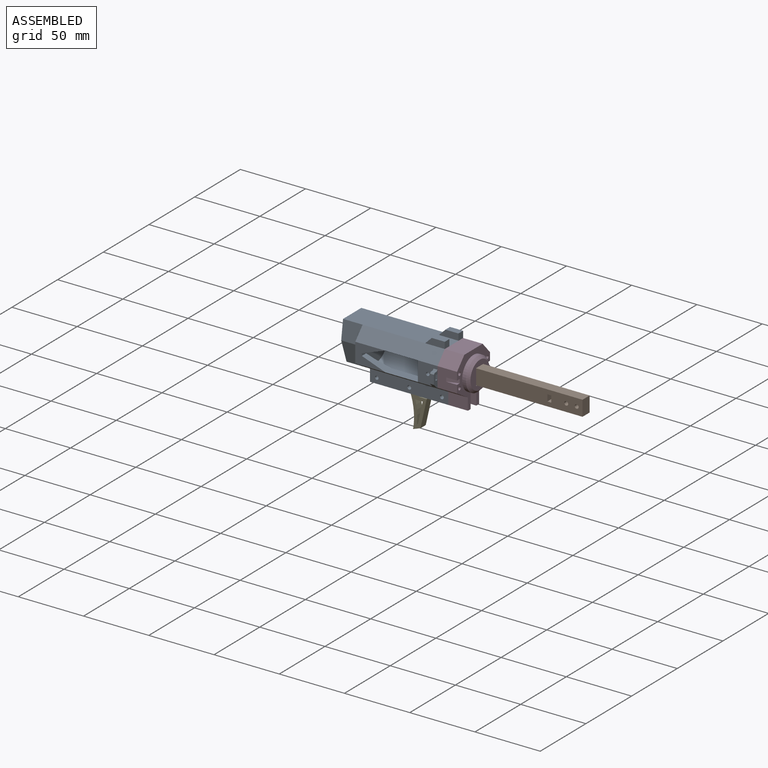
[diagram: assembled view]
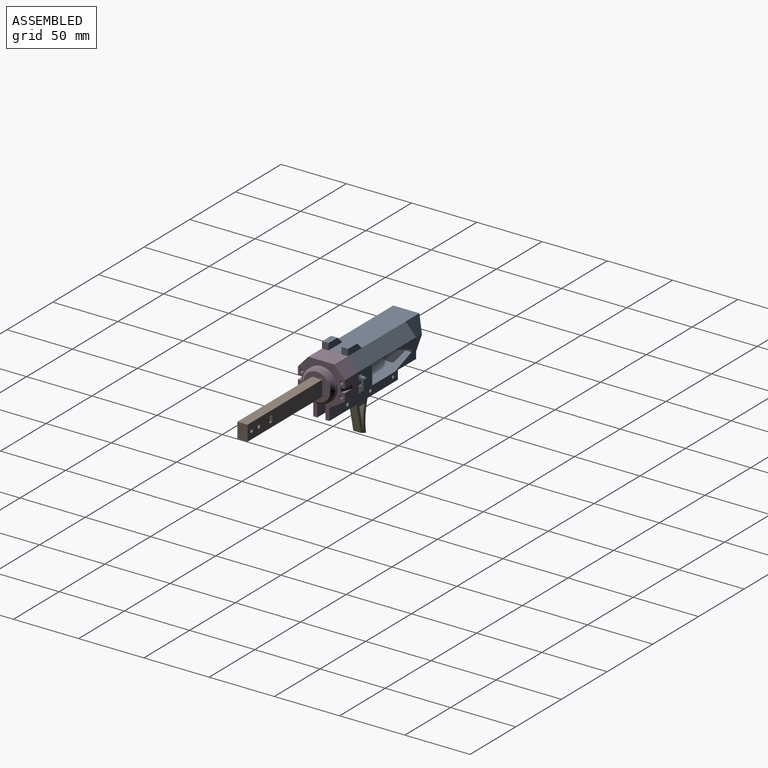
[diagram: assembled view, second angle]
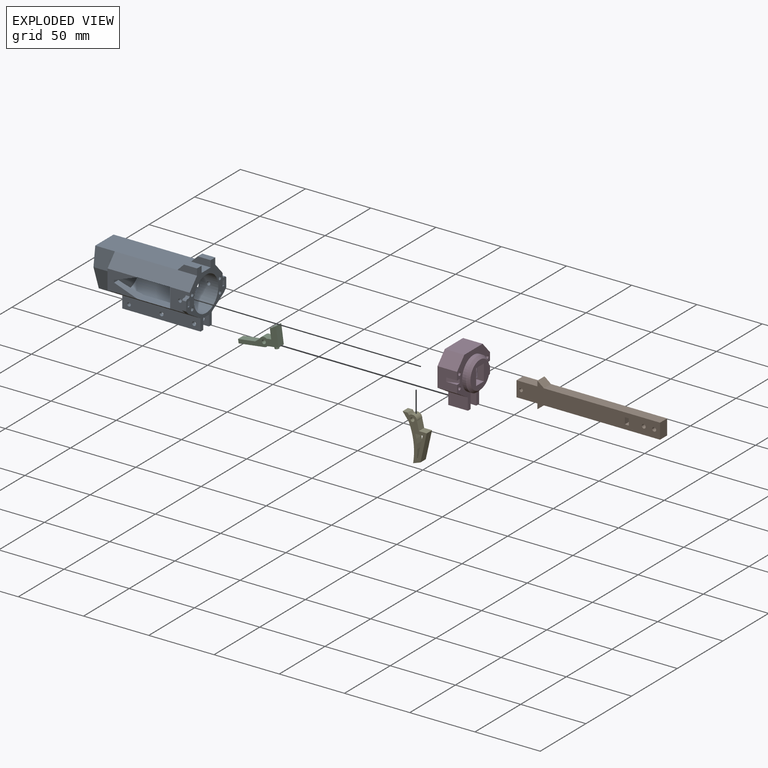
[diagram: exploded view]
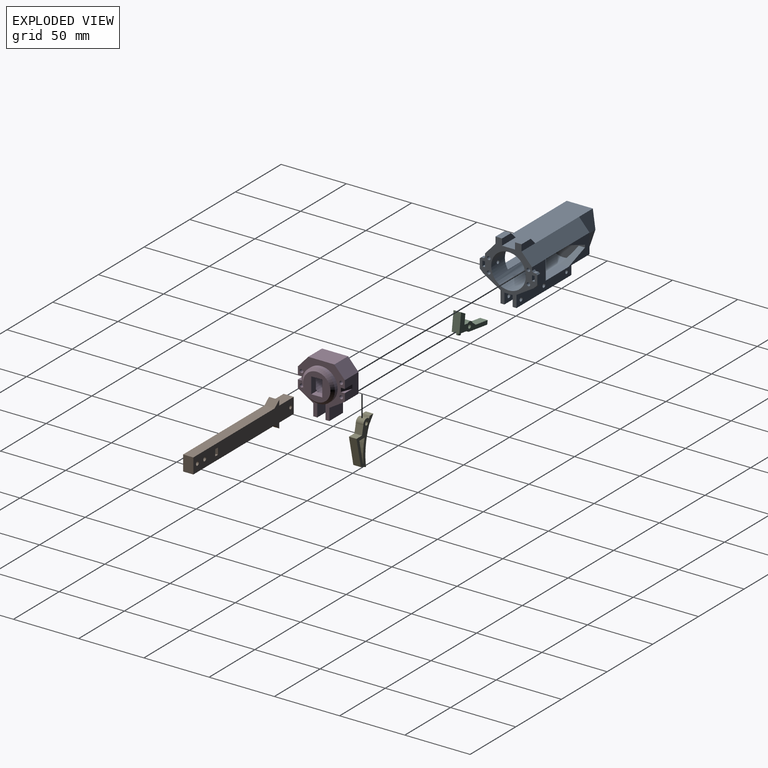
[diagram: exploded view, second angle]
ASSEMBLY  parts=5 mates=4
PART A: 98 faces, bbox 78x44x45.2 mm
  f0: plane 26.6x26.6mm, normal (1,0,0), area 470.8mm2, adj f21,f37,f38,f39,f40,f41,f42,f43
  f1: plane 20x7.28mm, normal (0.34,0,0.94), area 106.3mm2, adj f21,f24,f27,f96,f97
  f2: plane 20x7.28mm, normal (0.34,0,-0.94), area 106.3mm2, adj f21,f25,f27,f96,f97
  f3: plane 15x15mm, normal (0,1,0), area 193.8mm2, adj f7,f12,f13,f22,f67,f76,f78,f79
  f4: plane 31.07x11.85mm, normal (-1,0,0), area 171.8mm2, adj f12,f13,f27,f32,f35
  f5: plane 12.3x9.15mm, normal (-1,0,0), area 60.7mm2, adj f8,f9,f10,f11,f18,f19,f20,f28
  f6: plane 15x7.02mm, normal (-1,0,0), area 81.6mm2, adj f16,f21,f23,f26
  f7: plane 15x7.02mm, normal (-1,0,0), area 81.6mm2, adj f3,f21,f24,f25
  f8: plane 60x6.3mm, normal (0,0,-1), area 378mm2, adj f5,f9,f20,f22
  f9: plane 60x8.23mm, normal (0,-1,0), area 474.2mm2, adj f5,f8,f10,f22,f63,f64,f65
  f10: plane 60x3mm, normal (0,0,-1), area 180mm2, adj f5,f9,f11,f22
  f11: plane 60x9.15mm, normal (0,1,0), area 529.2mm2, adj f5,f10,f12,f22,f63,f64,f65
  f12: plane 63x13.14mm, normal (0,0.52,-0.85), area 880.4mm2, adj f3,f4,f11,f22,f24,f27,f28,f79
  f13: plane 63x8.8mm, normal (0,0.74,0.67), area 749.2mm2, adj f3,f4,f14,f22,f25,f27,f89
  f14: plane 78x20mm, normal (0,0,1), area 1410mm2, adj f13,f15,f22,f34,f35,f36,f86,f91
  f15: plane 63x8.8mm, normal (0,-0.74,0.67), area 749.2mm2, adj f14,f16,f22,f26,f29,f31,f88
  f16: plane 15x15mm, normal (0,-1,0), area 193.8mm2, adj f6,f15,f17,f22,f66,f70,f72,f73
  f17: plane 63x13.14mm, normal (0,-0.52,-0.85), area 880.4mm2, adj f16,f18,f22,f23,f28,f29,f31,f73
  f18: plane 60x9.15mm, normal (0,-1,0), area 529.2mm2, adj f5,f17,f19,f22,f60,f61,f62
  f19: plane 60x3mm, normal (0,0,-1), area 180mm2, adj f5,f18,f20,f22
  f20: plane 60x8.23mm, normal (0,1,0), area 474.2mm2, adj f5,f8,f19,f22,f60,f61,f62
  f21: cylinder r=13.3mm len=60mm, axis (1,0,0), area 3887.8mm2, adj f0,f1,f2,f6,f7,f22,f23,f24
  f22: plane 45.22x44mm, normal (1,0,0), area 557.4mm2, adj f3,f8,f9,f10,f11,f12,f13,f14
  f23: plane 25x7.02mm, normal (0,0,1), area 175.4mm2, adj f6,f17,f21,f51
  f24: plane 25x7.02mm, normal (0,0,1), area 175.4mm2, adj f1,f7,f12,f21
  f25: plane 25x7.02mm, normal (0,0,-1), area 175.4mm2, adj f2,f7,f13,f21
  f26: plane 25x7.02mm, normal (0,0,-1), area 175.4mm2, adj f6,f15,f21,f50
  f27: plane 23x15mm, normal (0,1,0), area 192.9mm2, adj f1,f2,f4,f12,f13,f97
  f28: plane 18x12.3mm, normal (0,0,-1), area 221.4mm2, adj f5,f12,f17,f32,f33,f36
  f29: plane 23x15mm, normal (0,-1,0), area 192.9mm2, adj f15,f17,f31,f50,f51,f95
  f30: cylinder r=9.1mm len=18.2mm, axis (1,0,0), area 857.7mm2, adj f36,f49
  f31: plane 31.07x11.85mm, normal (-1,0,0), area 171.8mm2, adj f15,f17,f29,f33,f34
  f32: plane 16.92x15mm, normal (0,0.95,-0.33), area 268.6mm2, adj f4,f28,f35,f36
  f33: plane 16.92x15mm, normal (0,-0.95,-0.33), area 268.6mm2, adj f28,f31,f34,f36
  f34: plane 15x14.15mm, normal (0,-0.99,0.14), area 214.4mm2, adj f14,f31,f33,f36
  f35: plane 15x14.15mm, normal (0,0.99,0.14), area 214.4mm2, adj f4,f14,f32,f36
  f36: plane 31.07x24mm, normal (-1,0,0), area 358.3mm2, adj f14,f28,f30,f32,f33,f34,f35
  f37: plane 5.42x3mm, normal (0,0,-1), area 16.3mm2, adj f0,f38,f45,f49
  f38: cylinder r=6.5mm len=5.42mm, axis (-1,0,0), area 24.6mm2, adj f0,f37,f45,f49
  f39: plane 5.42x3mm, normal (0,-1,0), area 16.3mm2, adj f0,f40,f46,f49
  f40: cylinder r=6.5mm len=5.42mm, axis (-1,0,0), area 24.6mm2, adj f0,f39,f46,f49
  f41: plane 5.42x3mm, normal (0,0,1), area 16.3mm2, adj f0,f42,f47,f49
  f42: cylinder r=6.5mm len=5.42mm, axis (-1,0,0), area 24.6mm2, adj f0,f41,f47,f49
  f43: cylinder r=6.5mm len=5.42mm, axis (-1,0,0), area 24.6mm2, adj f0,f44,f48,f49
  f44: plane 5.42x3mm, normal (0,0,-1), area 16.3mm2, adj f0,f43,f48,f49
  f45: plane 5.42x3mm, normal (0,-1,0), area 16.3mm2, adj f0,f37,f38,f49
  f46: plane 5.42x3mm, normal (0,0,1), area 16.3mm2, adj f0,f39,f40,f49
  f47: plane 5.42x3mm, normal (0,1,0), area 16.3mm2, adj f0,f41,f42,f49
  f48: plane 5.42x3mm, normal (0,1,0), area 16.3mm2, adj f0,f43,f44,f49
  f49: plane 18.2x18.2mm, normal (-1,0,0), area 175.2mm2, adj f30,f37,f38,f39,f40,f41,f42,f43
  f50: plane 20x7.28mm, normal (0.34,0,-0.94), area 106.3mm2, adj f21,f26,f29,f94,f95
  f51: plane 20x7.28mm, normal (0.34,0,0.94), area 106.3mm2, adj f21,f23,f29,f94,f95
  f52: cylinder r=1.35mm len=10mm, axis (1,0,0), area 84.8mm2, adj f22,f53
  f53: plane 2.7x2.7mm, normal (1,0,0), area 5.7mm2, adj f52
  f54: cylinder r=1.35mm len=10mm, axis (1,0,0), area 84.8mm2, adj f22,f55
  f55: plane 2.7x2.7mm, normal (1,0,0), area 5.7mm2, adj f54
  f56: cylinder r=1.35mm len=10mm, axis (1,0,0), area 84.8mm2, adj f22,f57
  f57: plane 2.7x2.7mm, normal (1,0,0), area 5.7mm2, adj f56
  f58: cylinder r=1.35mm len=10mm, axis (1,0,0), area 84.8mm2, adj f22,f59
  f59: plane 2.7x2.7mm, normal (1,0,0), area 5.7mm2, adj f58
  f60: cylinder r=1.5mm len=3mm, axis (0,-1,0), area 28.3mm2, adj f18,f20
  f61: cylinder r=1.5mm len=3mm, axis (0,-1,0), area 28.3mm2, adj f18,f20
  f62: cylinder r=1.35mm len=3mm, axis (0,-1,0), area 25.4mm2, adj f18,f20
  f63: cylinder r=1.5mm len=3mm, axis (0,-1,0), area 28.3mm2, adj f9,f11
  f64: cylinder r=1.5mm len=3mm, axis (0,-1,0), area 28.3mm2, adj f9,f11
  f65: cylinder r=1.35mm len=3mm, axis (0,-1,0), area 25.4mm2, adj f9,f11
  f66: cylinder r=1.35mm len=4.77mm, axis (0,-1,0), area 40.2mm2, adj f16,f21
  f67: cylinder r=1.35mm len=4.77mm, axis (0,-1,0), area 40.2mm2, adj f3,f21
  f68: plane 3x2mm, normal (0,0,1), area 6mm2, adj f22,f73,f84,f85
  f69: plane 7x3mm, normal (0,-1,0), area 21mm2, adj f22,f73,f80,f84
  f70: plane 3x2mm, normal (0,0,1), area 6mm2, adj f16,f22,f71,f73
  f71: plane 4x3mm, normal (0,1,0), area 12mm2, adj f22,f70,f72,f73
  f72: plane 3x2mm, normal (0,0,-1), area 6mm2, adj f16,f22,f71,f73
  f73: plane 12.5x4mm, normal (-1,0,0), area 31.7mm2, adj f16,f17,f68,f69,f70,f71,f72,f80
  f74: plane 7x3mm, normal (0,1,0), area 21mm2, adj f22,f79,f81,f83
  f75: plane 3x2mm, normal (0,0,1), area 6mm2, adj f22,f79,f82,f83
  f76: plane 3x2mm, normal (0,0,-1), area 6mm2, adj f3,f22,f77,f79
  f77: plane 4x3mm, normal (0,-1,0), area 12mm2, adj f22,f76,f78,f79
  f78: plane 3x2mm, normal (0,0,1), area 6mm2, adj f3,f22,f77,f79
  f79: plane 12.5x4mm, normal (-1,0,0), area 31.7mm2, adj f3,f12,f74,f75,f76,f77,f78,f81
  f80: plane 3x2.71mm, normal (0,-0.71,-0.71), area 11.5mm2, adj f17,f22,f69,f73
  f81: plane 3x2.71mm, normal (0,0.71,-0.71), area 11.5mm2, adj f12,f22,f74,f79
  f82: plane 3x1mm, normal (0,0.71,0.71), area 4.2mm2, adj f3,f22,f75,f79
  f83: plane 3x1mm, normal (0,0.71,0.71), area 4.2mm2, adj f22,f74,f75,f79
  f84: plane 3x1mm, normal (0,-0.71,0.71), area 4.2mm2, adj f22,f68,f69,f73
  f85: plane 3x1mm, normal (0,-0.71,0.71), area 4.2mm2, adj f16,f22,f68,f73
  f86: plane 15x5mm, normal (0,1,0), area 62.5mm2, adj f14,f22,f87,f93
  f87: plane 10x5mm, normal (0,0,1), area 50mm2, adj f22,f86,f88,f93
  f88: plane 15x5mm, normal (0,-1,0), area 62.5mm2, adj f15,f22,f87,f93
  f89: plane 15x5mm, normal (0,1,0), area 62.5mm2, adj f13,f22,f90,f92
  f90: plane 10x5mm, normal (0,0,1), area 50mm2, adj f22,f89,f91,f92
  f91: plane 15x5mm, normal (0,-1,0), area 62.5mm2, adj f14,f22,f90,f92
  f92: plane 5x5mm, normal (-0.71,0,0.71), area 35.4mm2, adj f14,f89,f90,f91
  f93: plane 5x5mm, normal (-0.71,0,0.71), area 35.4mm2, adj f14,f86,f87,f88
  f94: plane 2x1.9mm, normal (0,1,0), area 2.3mm2, adj f0,f50,f51,f95
  f95: plane 4.7x1.9mm, normal (1,0,0), area 8.9mm2, adj f29,f50,f51,f94
  f96: plane 2x1.9mm, normal (0,-1,0), area 2.3mm2, adj f0,f1,f2,f97
  f97: plane 4.7x1.9mm, normal (1,0,0), area 8.9mm2, adj f1,f2,f27,f96
PART B: 19 faces, bbox 110x7.8x19.8 mm
  f0: plane 110x19.8mm, normal (0,1,0), area 1283.1mm2, adj f2,f3,f4,f5,f6,f7,f8,f9
  f1: plane 110x19.8mm, normal (0,-1,0), area 1283.1mm2, adj f2,f3,f4,f5,f6,f7,f8,f9
  f2: plane 16x7.8mm, normal (0,0,1), area 124.8mm2, adj f0,f1,f7,f10
  f3: plane 16x7.8mm, normal (0,0,-1), area 124.8mm2, adj f0,f1,f7,f9
  f4: plane 89x7.8mm, normal (0,0,1), area 694.2mm2, adj f0,f1,f6,f11
  f5: plane 89x7.8mm, normal (0,0,-1), area 694.2mm2, adj f0,f1,f6,f8
  f6: plane 11.8x7.8mm, normal (1,0,0), area 92mm2, adj f0,f1,f4,f5
  f7: plane 11.8x7.8mm, normal (-1,0,0), area 92mm2, adj f0,f1,f2,f3
  f8: plane 7.8x5mm, normal (0.62,0,-0.78), area 49.9mm2, adj f0,f1,f5,f9
  f9: plane 7.8x4mm, normal (-1,0,0), area 31.2mm2, adj f0,f1,f3,f8
  f10: plane 7.8x4mm, normal (-1,0,0), area 31.2mm2, adj f0,f1,f2,f11
  f11: plane 7.8x5mm, normal (0.62,0,0.78), area 49.9mm2, adj f0,f1,f4,f10
  f12: cylinder r=1.5mm len=7.8mm, axis (0,-1,0), area 73.5mm2, adj f0,f1
  f13: cylinder r=1.5mm len=7.8mm, axis (0,-1,0), area 73.5mm2, adj f0,f1
  f14: plane 7.8x5mm, normal (-1,0,0), area 39mm2, adj f0,f1,f15,f17
  f15: plane 7.8x3mm, normal (0,0,-1), area 23.4mm2, adj f0,f1,f14,f16
  f16: plane 7.8x5mm, normal (1,0,0), area 39mm2, adj f0,f1,f15,f17
  f17: plane 7.8x3mm, normal (0,0,1), area 23.4mm2, adj f0,f1,f14,f16
  f18: cylinder r=1.35mm len=7.8mm, axis (0,-1,0), area 66.2mm2, adj f0,f1
PART C: 16 faces, bbox 31x5.8x16.4 mm
  f0: plane 5.8x5mm, normal (-0.37,0,0.93), area 31.2mm2, adj f1,f9,f11,f12
  f1: plane 7.4x5.8mm, normal (-1,0,0), area 42.9mm2, adj f0,f2,f11,f12
  f2: plane 5.8x3.55mm, normal (0,0,1), area 20.6mm2, adj f1,f3,f11,f12
  f3: cylinder r=3.5mm len=5.8mm, axis (0,1,0), area 37.2mm2, adj f2,f11,f12,f13
  f4: plane 13.17x5.8mm, normal (0,0,1), area 76.4mm2, adj f5,f11,f12,f13
  f5: plane 5.8x3mm, normal (-1,0,0), area 17.4mm2, adj f4,f6,f11,f12
  f6: plane 20x5.8mm, normal (0,0,-1), area 116mm2, adj f5,f7,f11,f12
  f7: cylinder r=3.5mm len=5.8mm, axis (0,1,0), area 15.7mm2, adj f6,f8,f11,f12
  f8: plane 8.55x5.8mm, normal (0,0,-1), area 42.5mm2, adj f7,f9,f11,f12,f14
  f9: plane 14.4x5.8mm, normal (1,0,0), area 83.5mm2, adj f0,f8,f11,f12
  f10: cylinder r=1.5mm len=5.8mm, axis (0,1,0), area 54.7mm2, adj f11,f12
  f11: plane 31x15.4mm, normal (0,-1,0), area 168.1mm2, adj f0,f1,f2,f3,f4,f5,f6,f7
  f12: plane 31x15.4mm, normal (0,1,0), area 168.1mm2, adj f0,f1,f2,f3,f4,f5,f6,f7
  f13: plane 5.8x3.78mm, normal (-0.51,0,0.86), area 25.4mm2, adj f3,f4,f11,f12
  f14: cylinder r=1.5mm len=3mm, axis (0,0,1), area 18.8mm2, adj f8,f15
  f15: plane 3x3mm, normal (0,0,-1), area 7.1mm2, adj f14
PART D: 38 faces, bbox 20.4x36.4x40.6 mm
  f0: plane 15x15mm, normal (0,-1,0), area 200.3mm2, adj f2,f6,f7,f22,f35,f36,f37
  f1: plane 15x15mm, normal (0,1,0), area 200.3mm2, adj f2,f15,f16,f22,f32,f33,f34
  f2: plane 40.22x36mm, normal (1,0,0), area 470mm2, adj f0,f1,f6,f7,f8,f9,f10,f12
  f3: plane 6.3x6.3mm, normal (-1,0,0), area 38.8mm2, adj f10,f12,f25,f26
  f4: plane 9.26x2.05mm, normal (-1,0,0), area 13.1mm2, adj f27,f30
  f5: plane 1.58x0.05mm, normal (-1,0,0), area 0.1mm2, adj f23,f30
  f6: plane 15x8.8mm, normal (0,-0.74,0.67), area 178.4mm2, adj f0,f2,f20,f22
  f7: plane 15x11.85mm, normal (0,-0.52,-0.85), area 208.5mm2, adj f0,f2,f8,f22
  f8: plane 15x9.15mm, normal (0,-1,0), area 137.3mm2, adj f2,f7,f9,f22
  f9: plane 15x3mm, normal (0,0,-1), area 45mm2, adj f2,f8,f10,f22
  f10: plane 18.14x15.42mm, normal (0,1,0), area 209.8mm2, adj f2,f3,f9,f11,f22,f25,f30
  f11: cylinder r=11.25mm len=22.5mm, axis (-1,0,0), area 643mm2, adj f10,f12,f22,f30
  f12: plane 18.14x15.42mm, normal (0,-1,0), area 209.8mm2, adj f2,f3,f11,f13,f22,f25,f30
  f13: plane 15x3mm, normal (0,0,-1), area 45mm2, adj f2,f12,f14,f22
  f14: plane 15x9.15mm, normal (0,1,0), area 137.3mm2, adj f2,f13,f15,f22
  f15: plane 15x11.85mm, normal (0,0.52,-0.85), area 208.5mm2, adj f1,f2,f14,f22
  f16: plane 15x8.8mm, normal (0,0.74,0.67), area 178.4mm2, adj f1,f2,f20,f22
  f17: cylinder r=1.35mm len=15mm, axis (-1,0,0), area 127.2mm2, adj f2,f22
  f18: cylinder r=1.35mm len=15mm, axis (-1,0,0), area 127.2mm2, adj f2,f22
  f19: cylinder r=1.35mm len=15mm, axis (-1,0,0), area 127.2mm2, adj f2,f22
  f20: plane 20x15mm, normal (0,0,1), area 300mm2, adj f2,f6,f16,f22
  f21: cylinder r=1.35mm len=15mm, axis (-1,0,0), area 127.2mm2, adj f2,f22
  f22: plane 40.22x36mm, normal (-1,0,0), area 573.3mm2, adj f0,f1,f6,f7,f8,f9,f10,f11
  f23: plane 8.4x6.24mm, normal (0,0,-1), area 45.4mm2, adj f5,f24,f27,f28,f30
  f24: plane 12.5x6.34mm, normal (0,-1,0), area 63.9mm2, adj f23,f25,f28,f29,f30
  f25: plane 8.45x6.29mm, normal (0,0,1), area 44mm2, adj f3,f10,f12,f24,f27,f28,f30
  f26: cylinder r=12.5mm len=25mm, axis (-1,0,0), area 235.6mm2, adj f2,f3,f31
  f27: plane 12.5x6.34mm, normal (0,1,0), area 63.9mm2, adj f4,f23,f25,f28,f30
  f28: plane 21x21mm, normal (1,0,0), area 242.2mm2, adj f23,f24,f25,f27,f31
  f29: plane 9.26x2.05mm, normal (-1,0,0), area 13.1mm2, adj f24,f30
  f30: cone r=11.25mm half-angle=45deg, axis (-1,0,0), area 332.1mm2, adj f4,f5,f10,f11,f12,f23,f24,f25
  f31: cone r=10.5mm half-angle=45deg, axis (-1,0,0), area 204.4mm2, adj f26,f28
  f32: plane 8.24x3mm, normal (0.34,0.94,0), area 26.3mm2, adj f1,f2,f33,f34
  f33: plane 8.24x3mm, normal (0,0,1), area 12.4mm2, adj f1,f2,f32
  f34: plane 8.24x3mm, normal (0,0,-1), area 12.4mm2, adj f1,f2,f32
  f35: plane 8.24x3mm, normal (0.34,-0.94,0), area 26.3mm2, adj f0,f2,f36,f37
  f36: plane 8.24x3mm, normal (0,0,1), area 12.4mm2, adj f0,f2,f35
  f37: plane 8.24x3mm, normal (0,0,-1), area 12.4mm2, adj f0,f2,f35
PART E: 16 faces, bbox 18.5x5.8x33.9 mm
  f0: cylinder r=51.48mm len=17.2mm, axis (0,1,0), area 100.5mm2, adj f1,f11,f14,f15
  f1: plane 5.8x5.66mm, normal (0,0,-1), area 32.8mm2, adj f0,f2,f14,f15
  f2: plane 17.02x5.8mm, normal (-0.98,0,0.22), area 101.2mm2, adj f1,f11,f14,f15
  f3: plane 6.06x5.8mm, normal (-0.79,0,-0.61), area 44.4mm2, adj f4,f12,f14,f15
  f4: cylinder r=48.98mm len=27.86mm, axis (0,1,0), area 165mm2, adj f3,f5,f14,f15
  f5: plane 5.8x5.65mm, normal (0.34,0,-0.94), area 34.8mm2, adj f4,f6,f14,f15
  f6: plane 21.41x5.8mm, normal (0.98,0,-0.22), area 127.2mm2, adj f5,f7,f14,f15
  f7: plane 6x5.8mm, normal (0,0,1), area 34.8mm2, adj f6,f8,f14,f15
  f8: plane 6.56x5.8mm, normal (0.97,0,0.22), area 39mm2, adj f7,f9,f14,f15
  f9: cylinder r=3.5mm len=6.09mm, axis (0,1,0), area 48.8mm2, adj f8,f10,f14,f15
  f10: plane 5.8x1.56mm, normal (0.81,0,0.58), area 11.1mm2, adj f9,f12,f14,f15
  f11: plane 5.8x0.5mm, normal (-0.34,0,0.94), area 3.1mm2, adj f0,f2,f14,f15
  f12: plane 5.8x3.75mm, normal (0,0,1), area 21.7mm2, adj f3,f10,f14,f15
  f13: cylinder r=1.5mm len=5.8mm, axis (0,1,0), area 54.7mm2, adj f14,f15
  f14: plane 33.92x18.46mm, normal (0,-1,0), area 197.7mm2, adj f0,f1,f2,f3,f4,f5,f6,f7
  f15: plane 33.92x18.46mm, normal (0,1,0), area 197.7mm2, adj f0,f1,f2,f3,f4,f5,f6,f7
PLACE A t=(22.35,2.11,1.8)mm fixed
PLACE B t=(23.65,2.11,1.8)mm
PLACE C rot(axis=(0,-1,0),7.7deg) t=(19.64,1.86,2.29)mm
PLACE D t=(22.35,2.11,1.8)mm
PLACE E rot(axis=(0,1,0),0deg) t=(22.35,2.36,1.8)mm
MATE revolute C.f3 <-> A.f61  axis (0,-1,0) through (17.35,-1.04,-18)mm
MATE revolute E.f9 <-> A.f60  axis (0,1,0) through (-7.65,5.26,-18)mm
MATE fastened D.f21 <-> A.f54  axis (-1,0,0) through (22.35,-13.09,-3.2)mm
MATE slider B.f6 <-> D.f26  axis (1,0,0) through (123.65,2.11,1.8)mm
